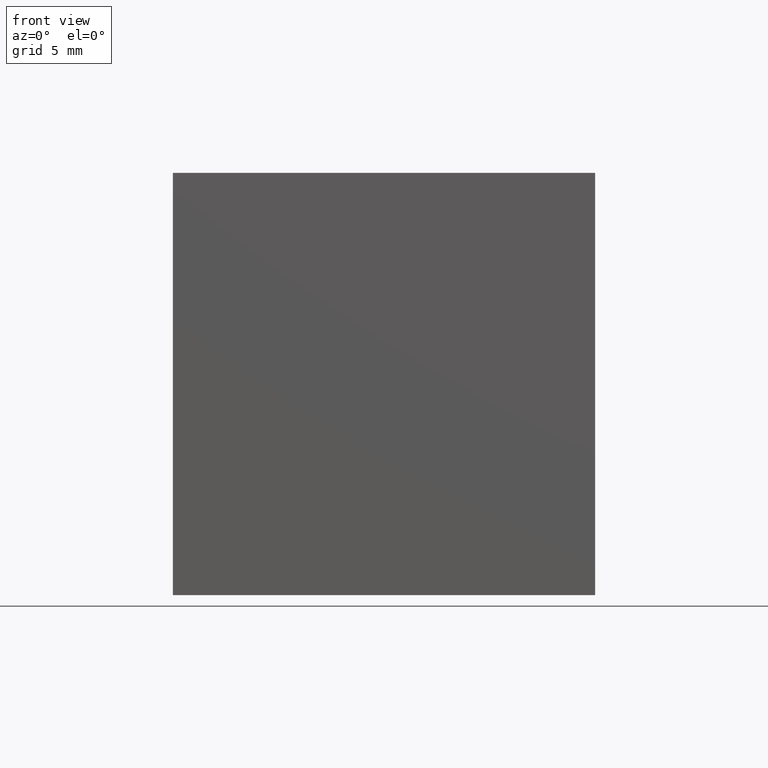
[diagram: clean part render]
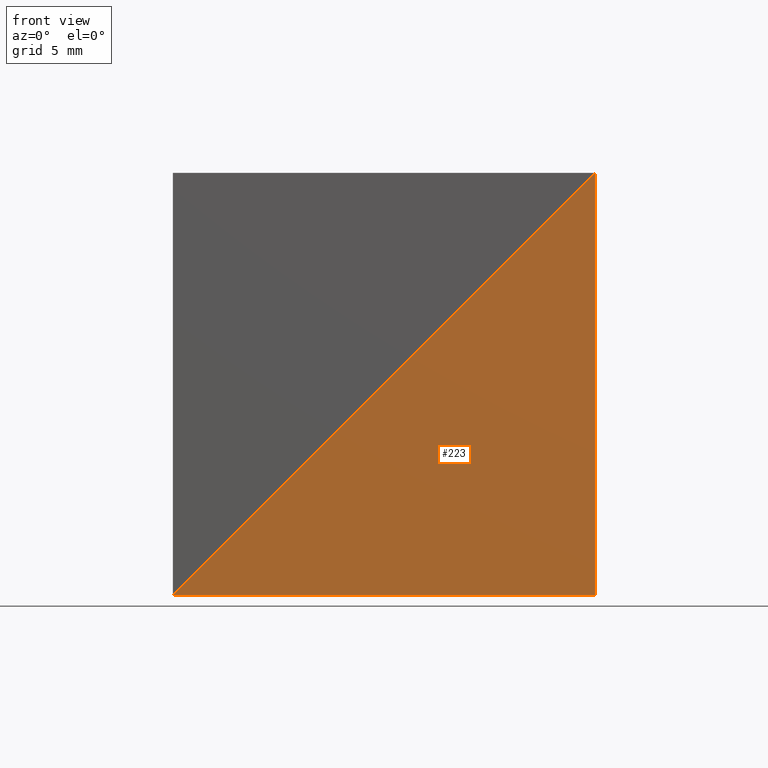
[diagram: same view with one face highlighted and labeled with its STEP entity id]
A machine part, front view. The second image highlights one B-rep face of the part: STEP entity #223.
In plain terms, the highlighted planar face has unit normal (0, -1, 0).
Its self-contained STEP definition (entity closure, byte-faithful):
#2 = VERTEX_POINT ( 'NONE', #144 ) ;
#18 = VECTOR ( 'NONE', #189, 1000.000000000000000 ) ;
#25 = FACE_OUTER_BOUND ( 'NONE', #172, .T. ) ;
#27 = ORIENTED_EDGE ( 'NONE', *, *, #146, .T. ) ;
#28 = DIRECTION ( 'NONE',  ( 0.0000000000000000000, 0.0000000000000000000, 1.000000000000000000 ) ) ;
#32 = CARTESIAN_POINT ( 'NONE',  ( 25.39999999999999900, 0.0000000000000000000, -25.39999999999999900 ) ) ;
#37 = VERTEX_POINT ( 'NONE', #99 ) ;
#43 = DIRECTION ( 'NONE',  ( 0.0000000000000000000, 0.0000000000000000000, -1.000000000000000000 ) ) ;
#66 = LINE ( 'NONE', #242, #199 ) ;
#81 = LINE ( 'NONE', #32, #260 ) ;
#99 = CARTESIAN_POINT ( 'NONE',  ( 25.39999999999999900, 0.0000000000000000000, -25.39999999999999900 ) ) ;
#115 = ORIENTED_EDGE ( 'NONE', *, *, #256, .T. ) ;
#137 = CARTESIAN_POINT ( 'NONE',  ( 0.0000000000000000000, 0.0000000000000000000, -25.39999999999999900 ) ) ;
#144 = CARTESIAN_POINT ( 'NONE',  ( 0.0000000000000000000, 0.0000000000000000000, -25.39999999999999900 ) ) ;
#146 = EDGE_CURVE ( 'NONE', #248, #2, #66, .T. ) ;
#157 = EDGE_CURVE ( 'NONE', #37, #248, #81, .T. ) ;
#163 = PLANE ( 'NONE',  #231 ) ;
#164 = CARTESIAN_POINT ( 'NONE',  ( 25.39999999999999900, 0.0000000000000000000, 0.0000000000000000000 ) ) ;
#172 = EDGE_LOOP ( 'NONE', ( #27, #115, #301 ) ) ;
#186 = DIRECTION ( 'NONE',  ( 0.0000000000000000000, -1.000000000000000000, 0.0000000000000000000 ) ) ;
#189 = DIRECTION ( 'NONE',  ( 1.000000000000000000, 0.0000000000000000000, 0.0000000000000000000 ) ) ;
#199 = VECTOR ( 'NONE', #299, 1000.000000000000100 ) ;
#217 = CARTESIAN_POINT ( 'NONE',  ( 0.0000000000000000000, 0.0000000000000000000, 0.0000000000000000000 ) ) ;
#223 = ADVANCED_FACE ( 'NONE', ( #25 ), #163, .T. ) ;
#231 = AXIS2_PLACEMENT_3D ( 'NONE', #217, #186, #43 ) ;
#242 = CARTESIAN_POINT ( 'NONE',  ( 25.39999999999999900, 0.0000000000000000000, 0.0000000000000000000 ) ) ;
#248 = VERTEX_POINT ( 'NONE', #164 ) ;
#256 = EDGE_CURVE ( 'NONE', #2, #37, #300, .T. ) ;
#260 = VECTOR ( 'NONE', #28, 1000.000000000000000 ) ;
#299 = DIRECTION ( 'NONE',  ( -0.7071067811865474600, 0.0000000000000000000, -0.7071067811865474600 ) ) ;
#300 = LINE ( 'NONE', #137, #18 ) ;
#301 = ORIENTED_EDGE ( 'NONE', *, *, #157, .T. ) ;